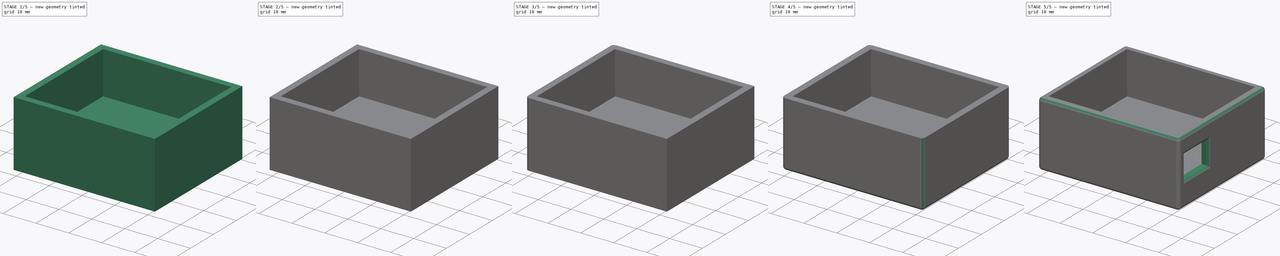
[diagram: build sequence overview — one tinted view per stage of 5, left to right]
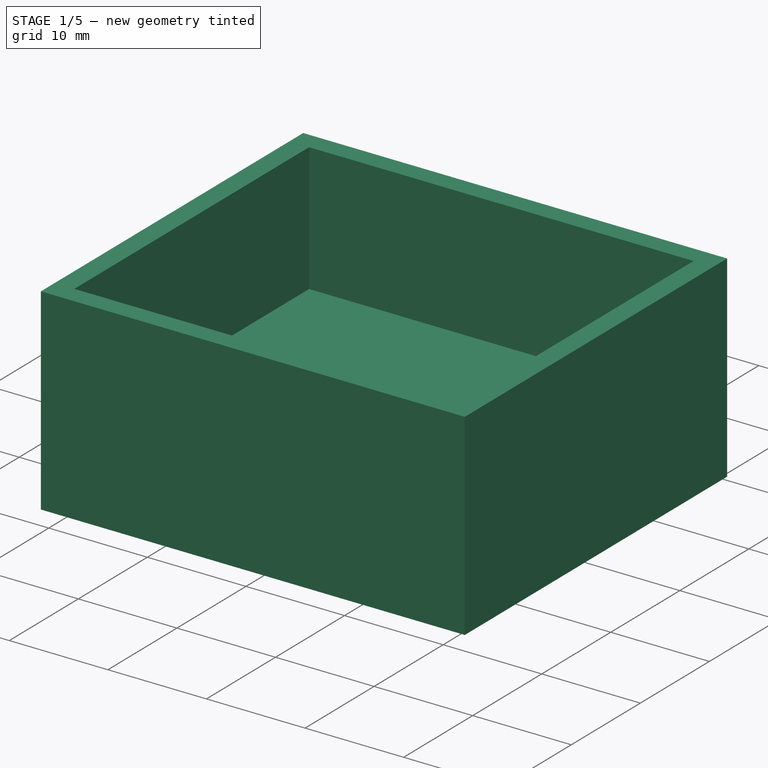
[diagram: stage 1 of 5 — iso view after this stage's code; geometry added in this stage tinted green]
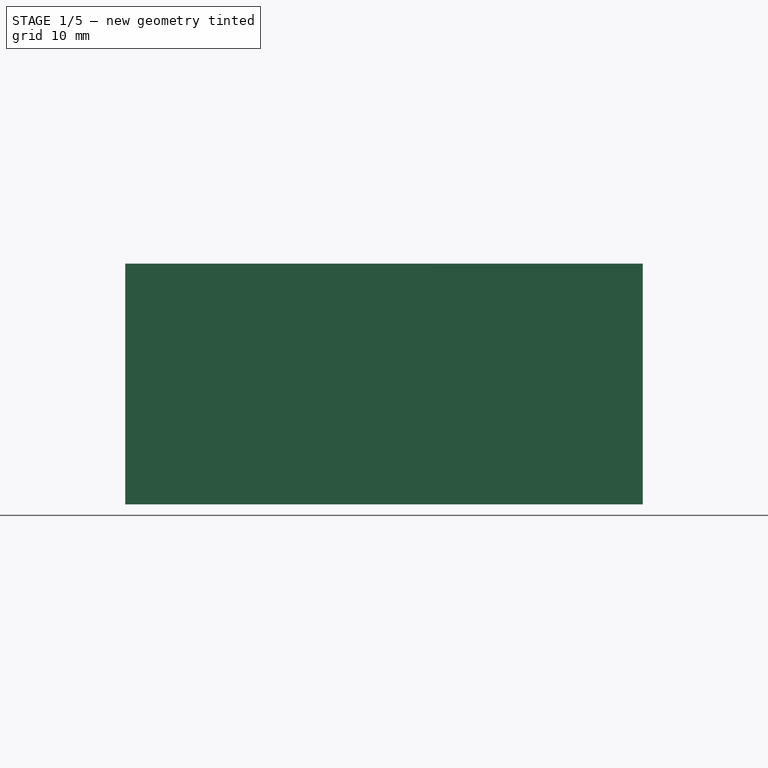
[diagram: stage 1 of 5 — front view after this stage's code; geometry added in this stage tinted green]
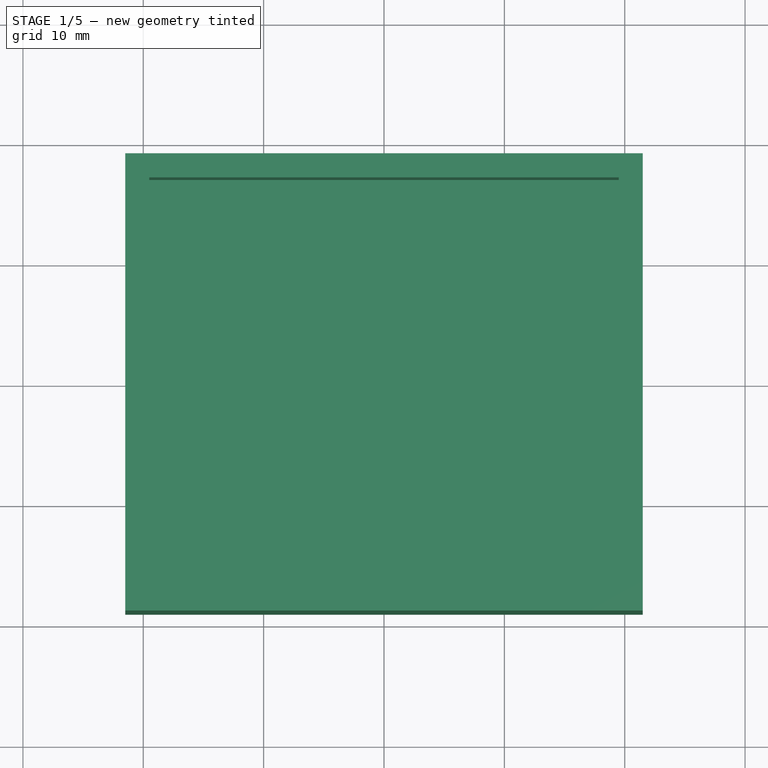
[diagram: stage 1 of 5 — top view after this stage's code; geometry added in this stage tinted green]
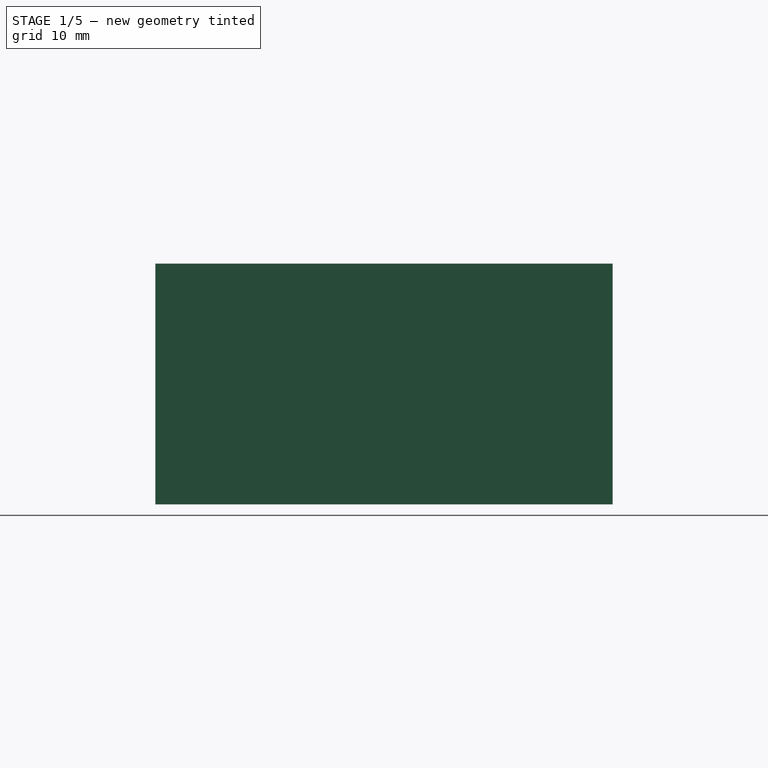
[diagram: stage 1 of 5 — right view after this stage's code; geometry added in this stage tinted green]
FCSTD DOCUMENT  (FreeCAD 0.18R16146 (Git))
Label: SensorCase
License: All rights reserved
LicenseURL: http://en.wikipedia.org/wiki/All_rights_reserved
objects: PartDesign::Fillet×11, Sketcher::SketchObject×5, PartDesign::Pocket×3, PartDesign::Pad×1, PartDesign::Body×1
note: 25 computed .brp shape members not serialized (recipe doc carries the construction recipe); baked Part::Feature solids carry a one-line shape summary decoded from their .brp

FEATURE [Sketcher::SketchObject] Sketch
  MapMode = 5
  Support = -> [XY_Plane]
  sketch-geometry (4):
    g0: LineSegment StartX=-21.5 StartY=19 StartZ=0 EndX=21.5 EndY=19 EndZ=0
    g1: LineSegment StartX=21.5 StartY=19 StartZ=0 EndX=21.5 EndY=-19 EndZ=0
    g2: LineSegment StartX=21.5 StartY=-19 StartZ=0 EndX=-21.5 EndY=-19 EndZ=0
    g3: LineSegment StartX=-21.5 StartY=-19 StartZ=0 EndX=-21.5 EndY=19 EndZ=0
  constraints (12):
    c: Coincident(g0,g1)
    c: Coincident(g1,g2)
    c: Coincident(g2,g3)
    c: Coincident(g3,g0)
    c: Horizontal(g0)
    c: Horizontal(g2)
    c: Vertical(g1)
    c: Vertical(g3)
    c: DistanceX(g0,g0) = 43
    c: DistanceY(g1,g1) = 38
    c: Distance(g-1,g1) = 21.5
    c: Distance(g-1,g2) = 19
FEATURE [PartDesign::Pad] Pad
  Length = 20
  Length2 = 100
  Profile = -> Sketch
  Type = 0
FEATURE [Sketcher::SketchObject] Sketch002
  MapMode = 5
  Placement = pos=(0,0,0) rot=(1,0,0;3.14159rad)
  sketch-geometry (4):
    g0: LineSegment StartX=-19.5 StartY=17 StartZ=0 EndX=19.5 EndY=17 EndZ=0
    g1: LineSegment StartX=19.5 StartY=17 StartZ=0 EndX=19.5 EndY=-17 EndZ=0
    g2: LineSegment StartX=19.5 StartY=-17 StartZ=0 EndX=-19.5 EndY=-17 EndZ=0
    g3: LineSegment StartX=-19.5 StartY=-17 StartZ=0 EndX=-19.5 EndY=17 EndZ=0
  constraints (12):
    c: Coincident(g0,g1)
    c: Coincident(g1,g2)
    c: Coincident(g2,g3)
    c: Coincident(g3,g0)
    c: Horizontal(g0)
    c: Horizontal(g2)
    c: Vertical(g1)
    c: Vertical(g3)
    c: Distance(g0) = 39
    c: Distance(g1) = 34
    c: Distance(g-1,g1) = 19.5
    c: Distance(g-1,g2) = 17
FEATURE [PartDesign::Pocket] Pocket001
  BaseFeature = -> Pad
  Length = 5
  Length2 = 100
  Profile = -> Sketch002
  Type = 0
FEATURE [Sketcher::SketchObject] Sketch003
  MapMode = 5
  Placement = pos=(0,0,20) rot=(0,0,1;0rad)
  Support = -> [Pocket001]
  sketch-geometry (4):
    g0: LineSegment StartX=-19.5 StartY=17 StartZ=0 EndX=19.5 EndY=17 EndZ=0
    g1: LineSegment StartX=19.5 StartY=17 StartZ=0 EndX=19.5 EndY=-17 EndZ=0
    g2: LineSegment StartX=19.5 StartY=-17 StartZ=0 EndX=-19.5 EndY=-17 EndZ=0
    g3: LineSegment StartX=-19.5 StartY=-17 StartZ=0 EndX=-19.5 EndY=17 EndZ=0
  constraints (12):
    c: Coincident(g0,g1)
    c: Coincident(g1,g2)
    c: Coincident(g2,g3)
    c: Coincident(g3,g0)
    c: Horizontal(g0)
    c: Horizontal(g2)
    c: Vertical(g1)
    c: Vertical(g3)
    c: Distance(g0) = 39
    c: Distance(g1) = 34
    c: Distance(g-1,g0) = 17
    c: Distance(g-1,g3) = 19.5
FEATURE [PartDesign::Pocket] Pocket
  BaseFeature = -> Pocket001
  Length = 13
  Length2 = 100
  Profile = -> Sketch003
  Type = 0
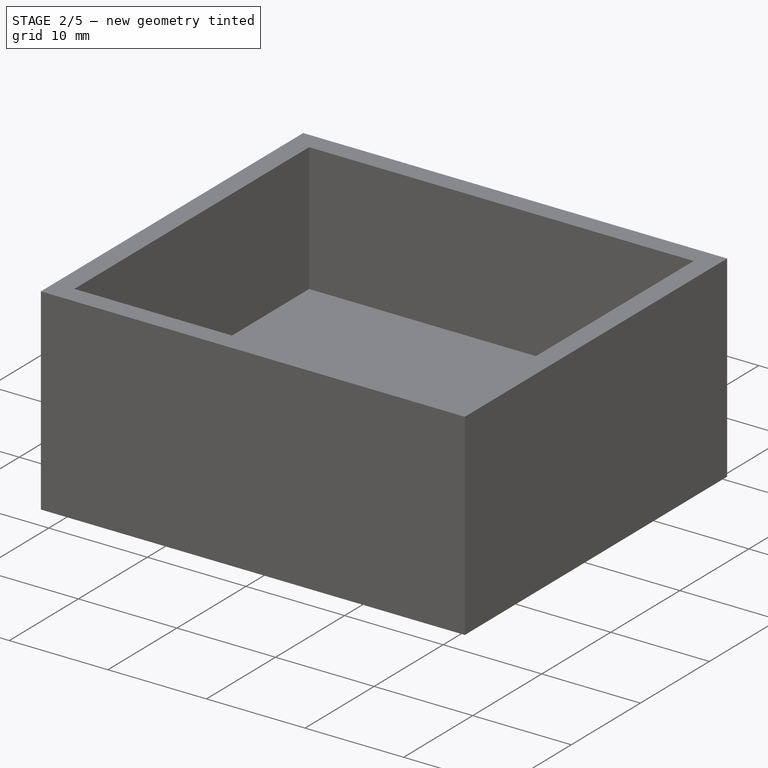
[diagram: stage 2 of 5 — iso view after this stage's code; geometry added in this stage tinted green]
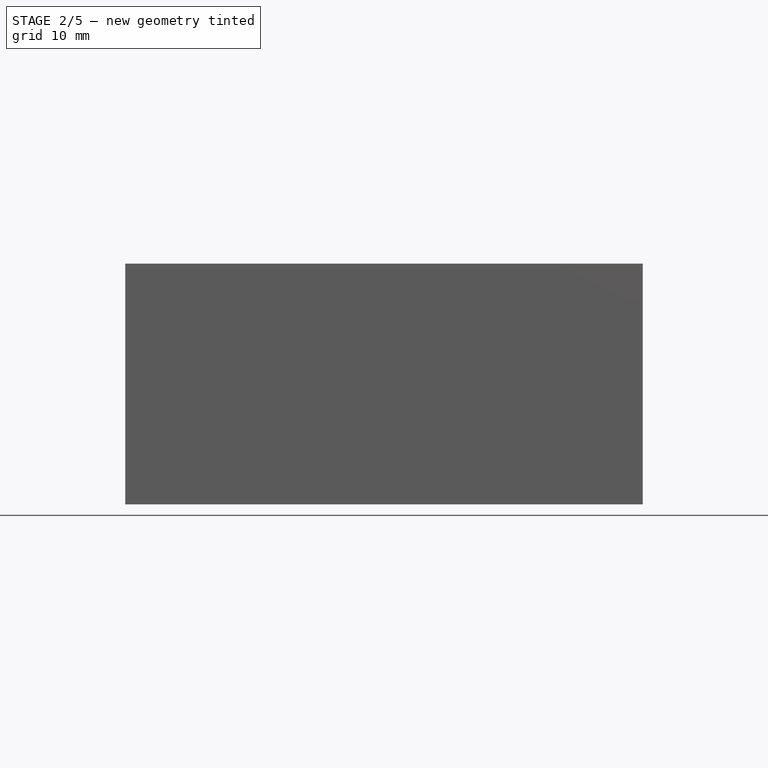
[diagram: stage 2 of 5 — front view after this stage's code; geometry added in this stage tinted green]
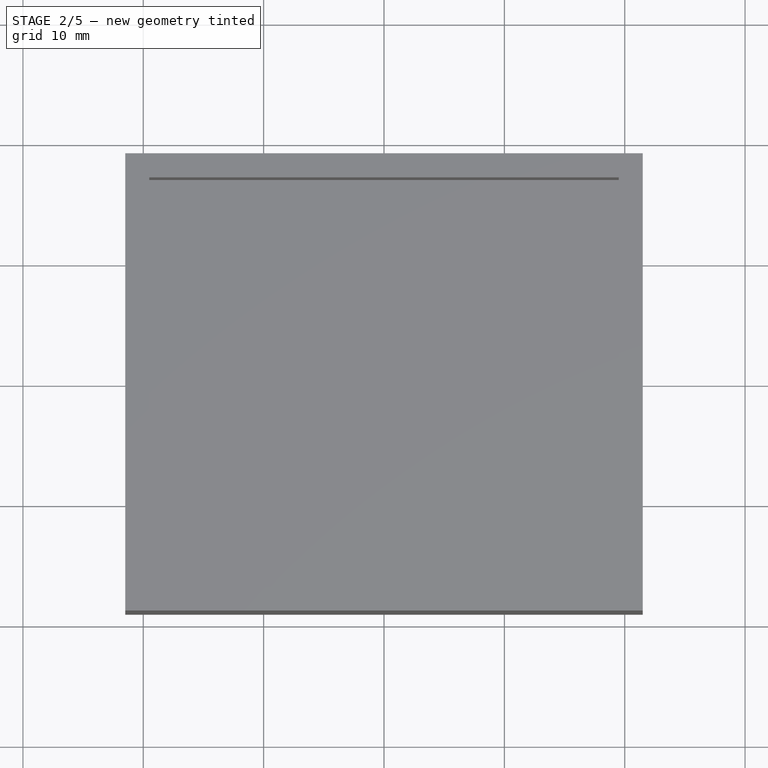
[diagram: stage 2 of 5 — top view after this stage's code; geometry added in this stage tinted green]
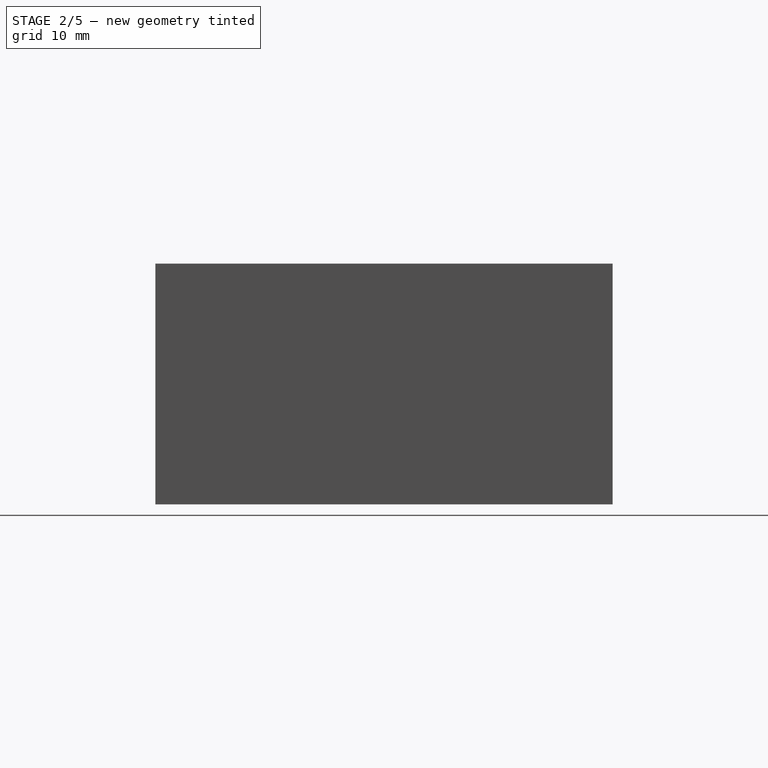
[diagram: stage 2 of 5 — right view after this stage's code; geometry added in this stage tinted green]
FEATURE [PartDesign::Fillet] Fillet
  Base = -> Pocket [Edge27]
  BaseFeature = -> Pocket
  Radius = 1
FEATURE [PartDesign::Fillet] Fillet001
  Base = -> Fillet [Edge17]
  BaseFeature = -> Fillet
  Radius = 1
FEATURE [PartDesign::Fillet] Fillet002
  Base = -> Fillet001 [Edge12]
  BaseFeature = -> Fillet001
  Radius = 1
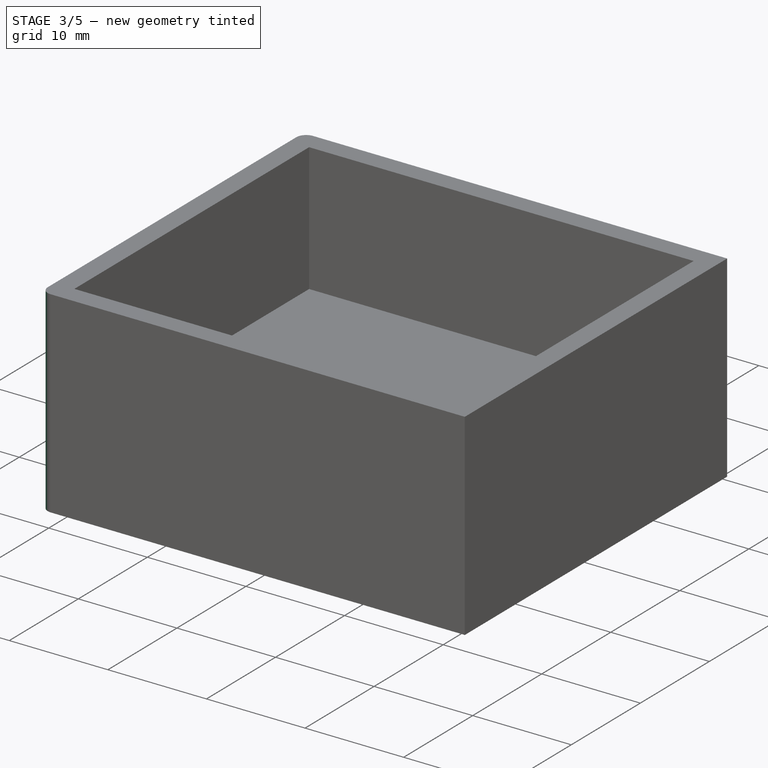
[diagram: stage 3 of 5 — iso view after this stage's code; geometry added in this stage tinted green]
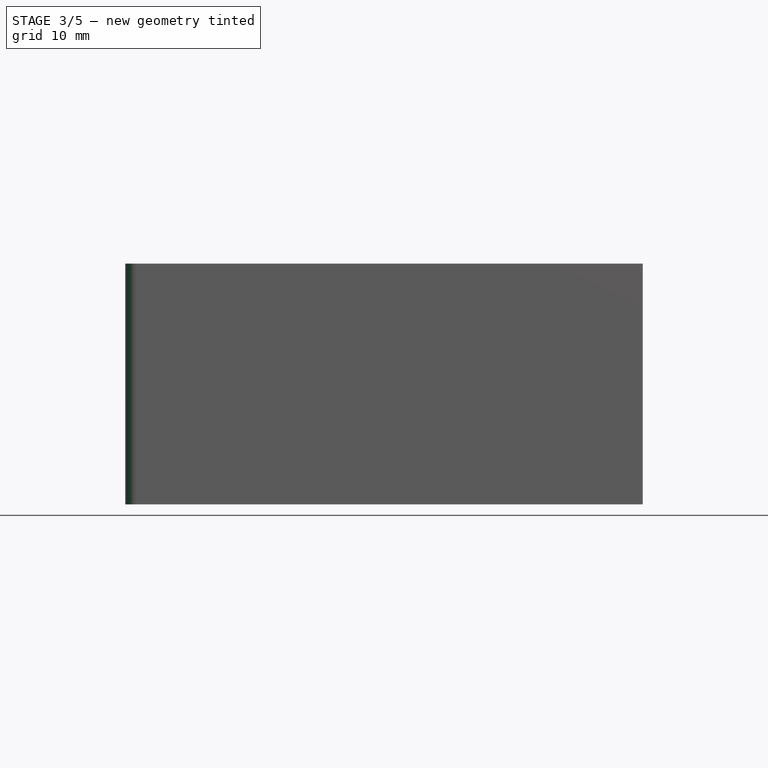
[diagram: stage 3 of 5 — front view after this stage's code; geometry added in this stage tinted green]
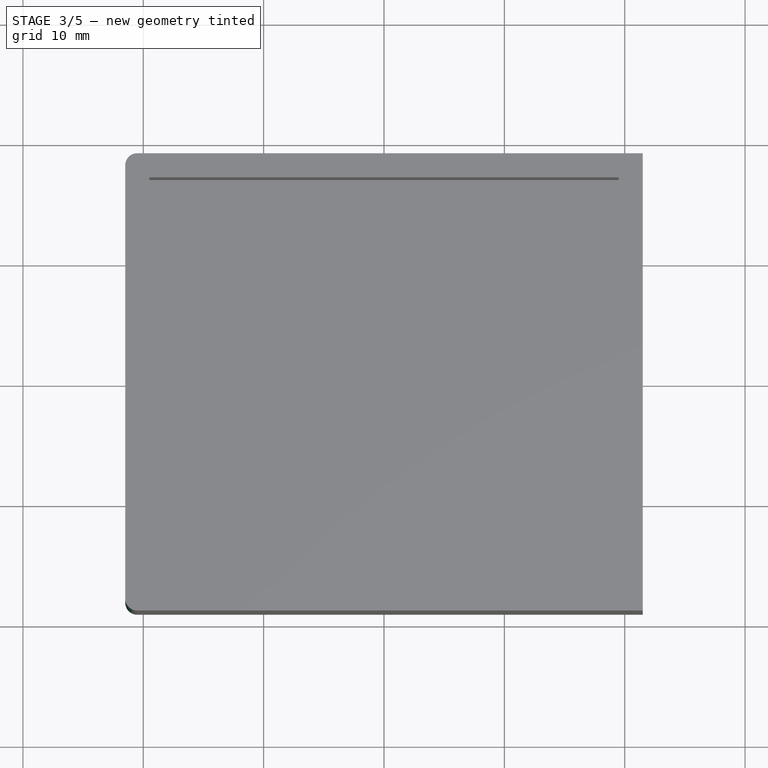
[diagram: stage 3 of 5 — top view after this stage's code; geometry added in this stage tinted green]
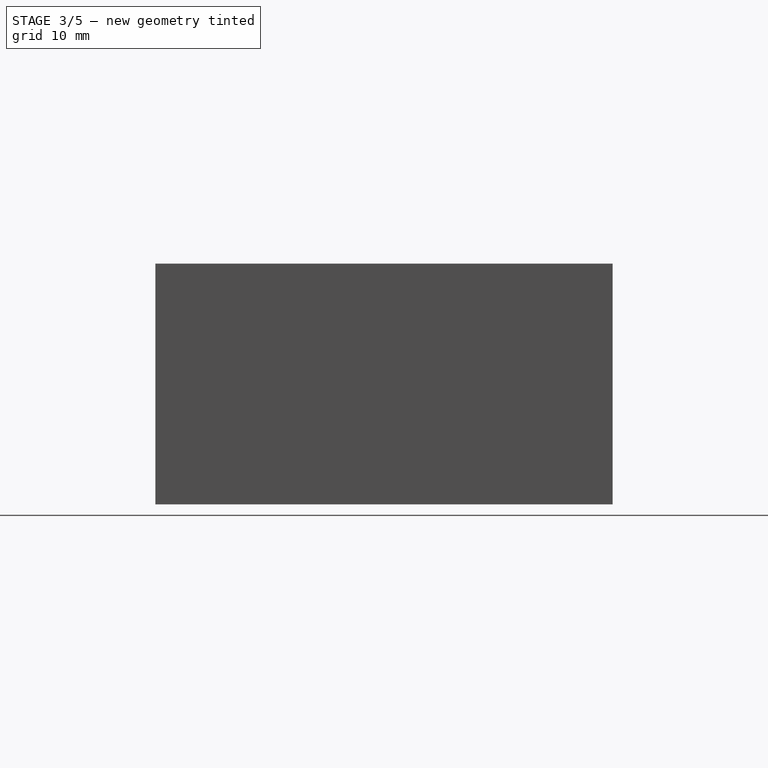
[diagram: stage 3 of 5 — right view after this stage's code; geometry added in this stage tinted green]
FEATURE [PartDesign::Fillet] Fillet003
  Base = -> Fillet002 [Edge27]
  BaseFeature = -> Fillet002
  Radius = 1
FEATURE [PartDesign::Fillet] Fillet004
  Base = -> Fillet003 [Edge32]
  BaseFeature = -> Fillet003
  Radius = 1
FEATURE [PartDesign::Fillet] Fillet005
  Base = -> Fillet004 [Edge15]
  BaseFeature = -> Fillet004
  Radius = 1
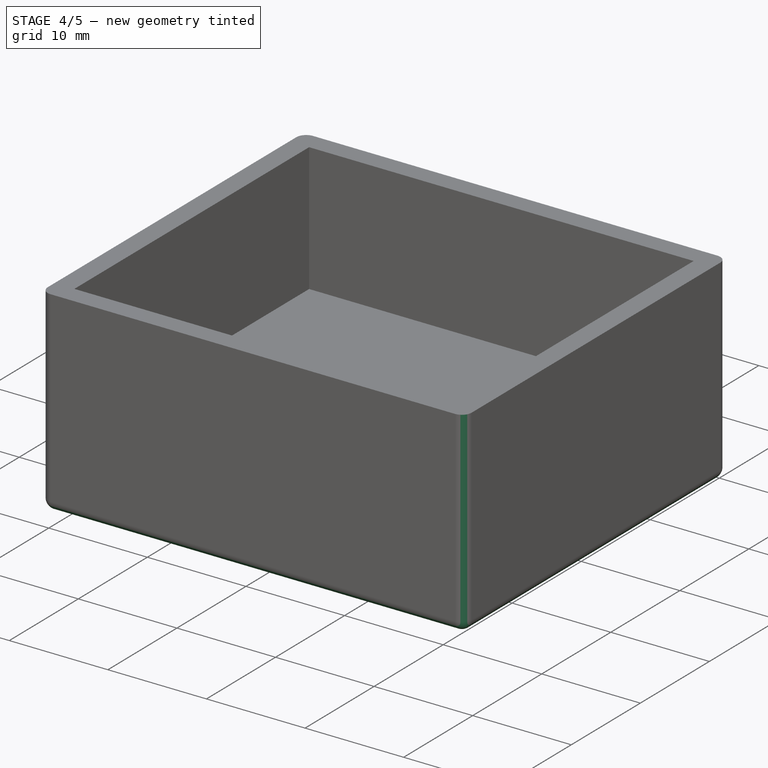
[diagram: stage 4 of 5 — iso view after this stage's code; geometry added in this stage tinted green]
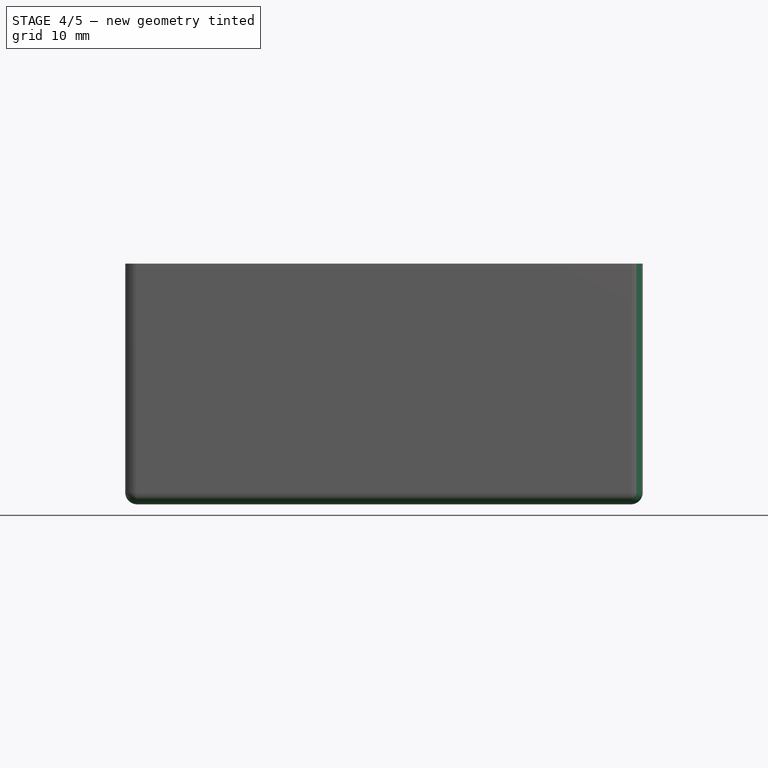
[diagram: stage 4 of 5 — front view after this stage's code; geometry added in this stage tinted green]
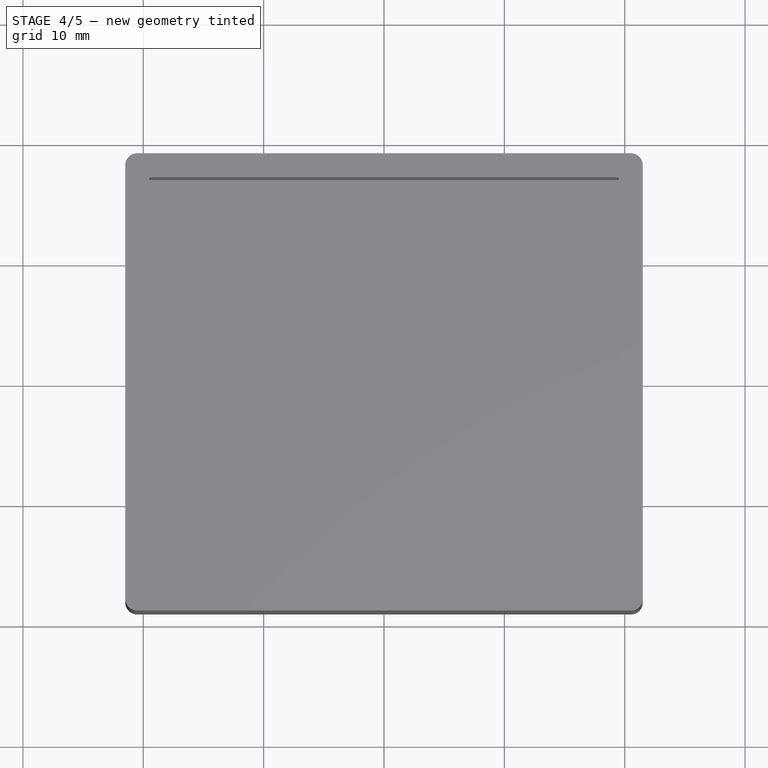
[diagram: stage 4 of 5 — top view after this stage's code; geometry added in this stage tinted green]
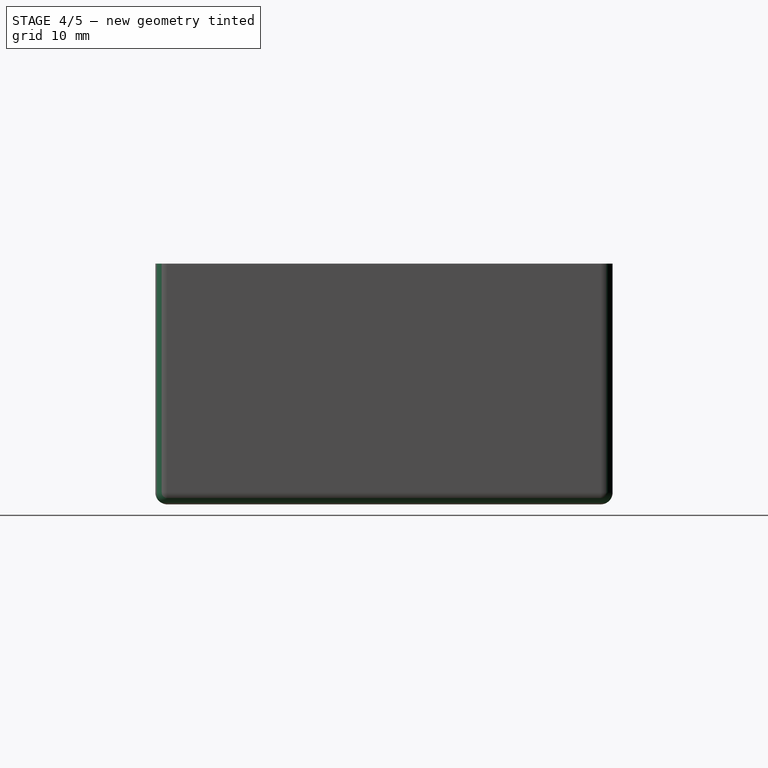
[diagram: stage 4 of 5 — right view after this stage's code; geometry added in this stage tinted green]
FEATURE [PartDesign::Fillet] Fillet006
  Base = -> Fillet005 [Edge22]
  BaseFeature = -> Fillet005
  Radius = 1
FEATURE [PartDesign::Fillet] Fillet007
  Base = -> Fillet006 [Edge23]
  BaseFeature = -> Fillet006
  Radius = 1
FEATURE [PartDesign::Fillet] Fillet008
  Base = -> Fillet007 [Edge1]
  BaseFeature = -> Fillet007
  Radius = 1
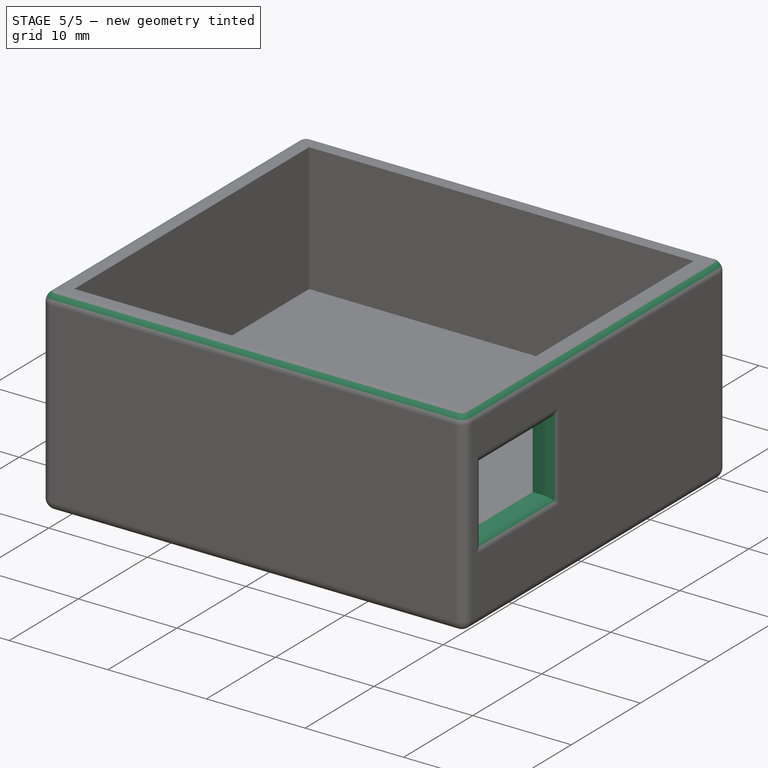
[diagram: stage 5 of 5 — iso view after this stage's code; geometry added in this stage tinted green]
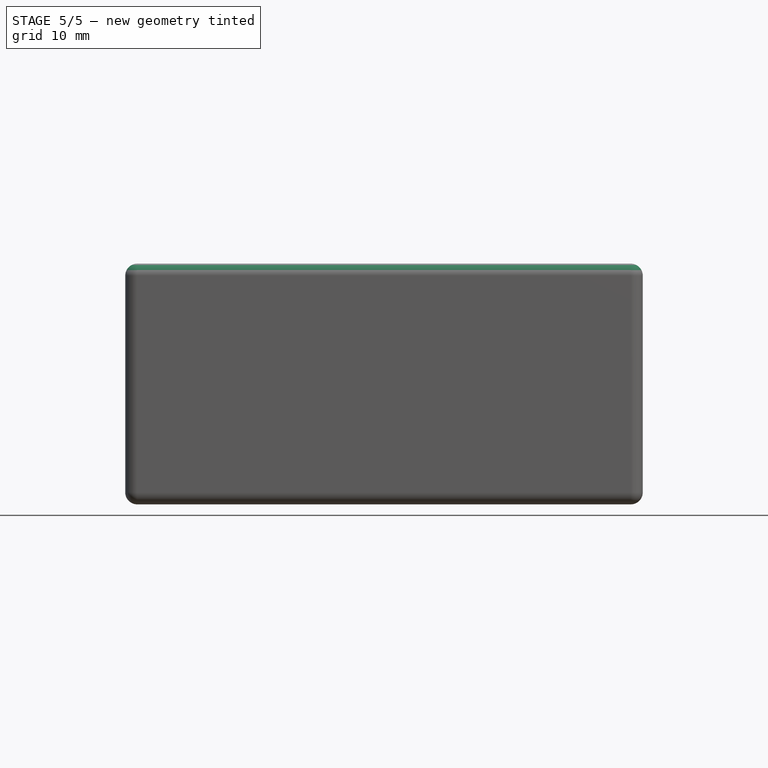
[diagram: stage 5 of 5 — front view after this stage's code; geometry added in this stage tinted green]
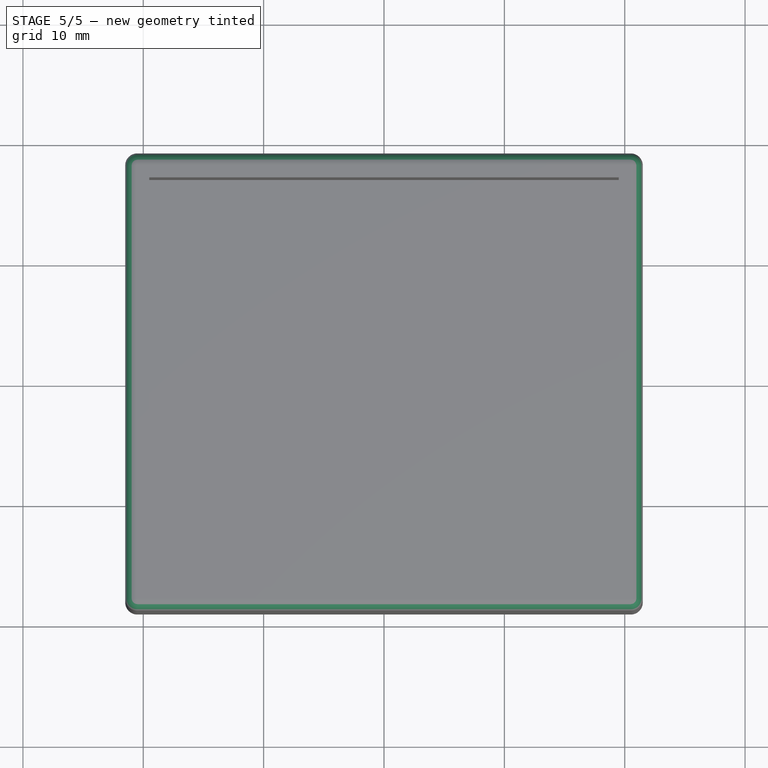
[diagram: stage 5 of 5 — top view after this stage's code; geometry added in this stage tinted green]
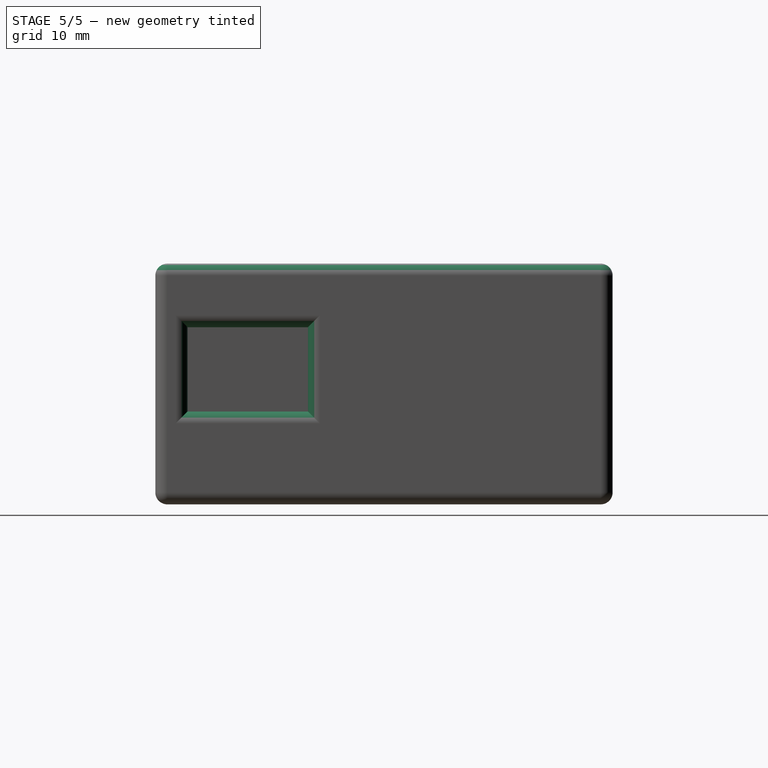
[diagram: stage 5 of 5 — right view after this stage's code; geometry added in this stage tinted green]
FEATURE [PartDesign::Fillet] Fillet009
  Base = -> Fillet008 [Edge44]
  BaseFeature = -> Fillet008
  Radius = 1
FEATURE [Sketcher::SketchObject] Sketch004
  MapMode = 5
  Placement = pos=(0,-17,0) rot=(0,0.707107,0.707107;3.14159rad)
  Support = -> [Fillet009]
  sketch-geometry (4):
    g0: LineSegment StartX=8.77968 StartY=13.6684 StartZ=0 EndX=18.7797 EndY=13.6684 EndZ=0
    g1: LineSegment StartX=18.7797 StartY=13.6684 StartZ=0 EndX=18.7797 EndY=7.66837 EndZ=0
    g2: LineSegment StartX=18.7797 StartY=7.66837 StartZ=0 EndX=8.77968 EndY=7.66837 EndZ=0
    g3: LineSegment StartX=8.77968 StartY=7.66837 StartZ=0 EndX=8.77968 EndY=13.6684 EndZ=0
  constraints (10):
    c: Coincident(g0,g1)
    c: Coincident(g1,g2)
    c: Coincident(g2,g3)
    c: Coincident(g3,g0)
    c: Horizontal(g0)
    c: Horizontal(g2)
    c: Vertical(g1)
    c: Vertical(g3)
    c: Distance(g0) = 10
    c: Distance(g1) = 6
FEATURE [Sketcher::SketchObject] Sketch005
  MapMode = 5
  Placement = pos=(19.5,0,0) rot=(0.57735,-0.57735,-0.57735;2.0944rad)
  Support = -> [Fillet009]
  sketch-geometry (4):
    g0: LineSegment StartX=6.31283 StartY=14.7189 StartZ=0 EndX=16.3128 EndY=14.7189 EndZ=0
    g1: LineSegment StartX=16.3128 StartY=14.7189 StartZ=0 EndX=16.3128 EndY=7.71894 EndZ=0
    g2: LineSegment StartX=16.3128 StartY=7.71894 StartZ=0 EndX=6.31283 EndY=7.71894 EndZ=0
    g3: LineSegment StartX=6.31283 StartY=7.71894 StartZ=0 EndX=6.31283 EndY=14.7189 EndZ=0
  constraints (10):
    c: Coincident(g0,g1)
    c: Coincident(g1,g2)
    c: Coincident(g2,g3)
    c: Coincident(g3,g0)
    c: Horizontal(g0)
    c: Horizontal(g2)
    c: Vertical(g1)
    c: Vertical(g3)
    c: Distance(g0) = 10
    c: Distance(g1) = 7
FEATURE [PartDesign::Pocket] Pocket002
  BaseFeature = -> Fillet009
  Length = 5
  Length2 = 100
  Profile = -> Sketch005
  Type = 0
FEATURE [PartDesign::Fillet] Fillet010
  Base = -> Pocket002 [Edge6,Edge5,Edge8,Edge7]
  BaseFeature = -> Pocket002
  Radius = 1
FEATURE [PartDesign::Body] Body
  Group = -> [Sketch,Pad,Sketch002,Pocket001,Sketch003,Pocket,Fillet,Fillet001,Fillet002,Fillet003,Fillet004,Fillet005,Fillet006,Fillet007,Fillet008,Fillet009,Sketch004,Sketch005,Pocket002,Fillet010]
  Origin = -> Origin
  Tip = -> Fillet010
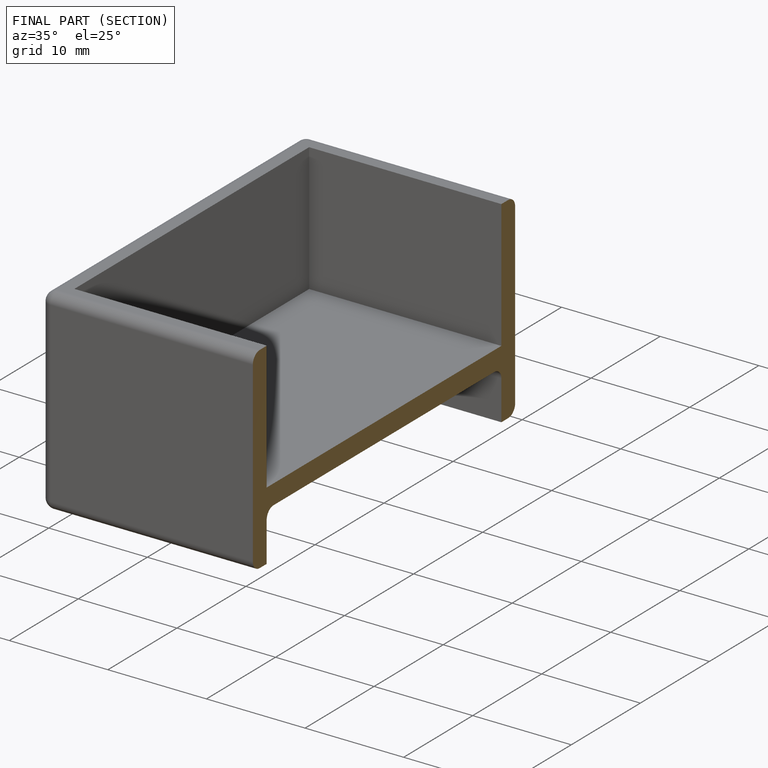
[diagram: finished part — half-section view (interior)]
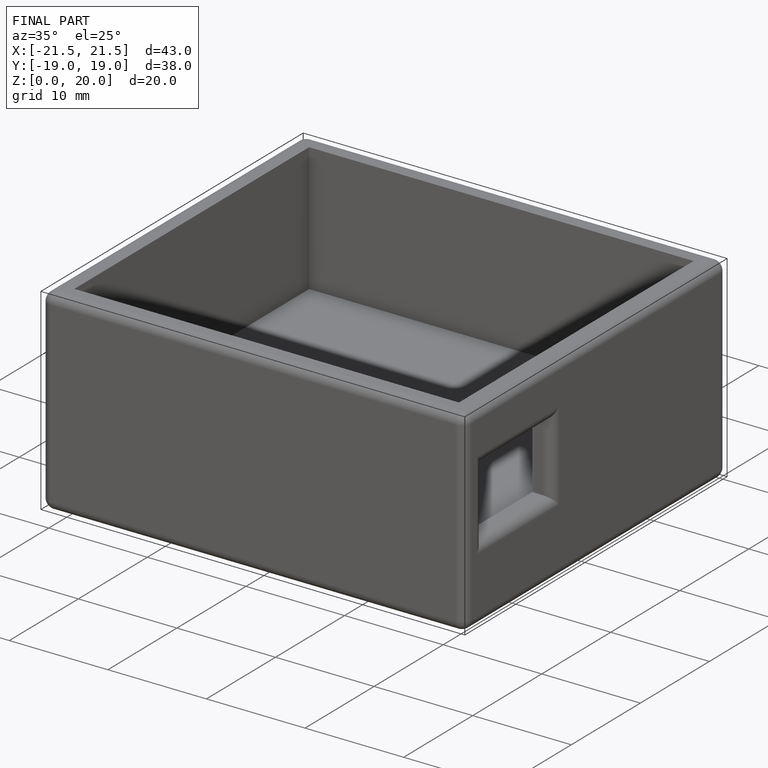
[diagram: finished part — iso view with bounding-box wireframe]
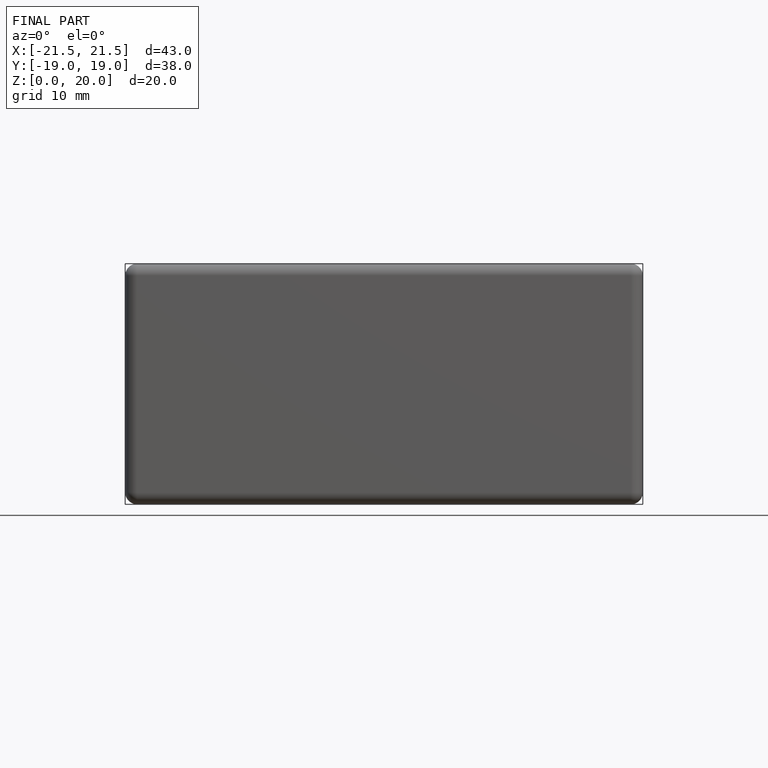
[diagram: finished part — front view with bounding-box wireframe]
